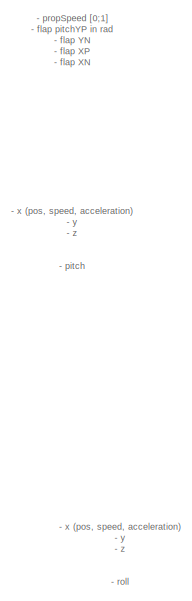
[diagram: root canvas - part 1/2, right side, full height]
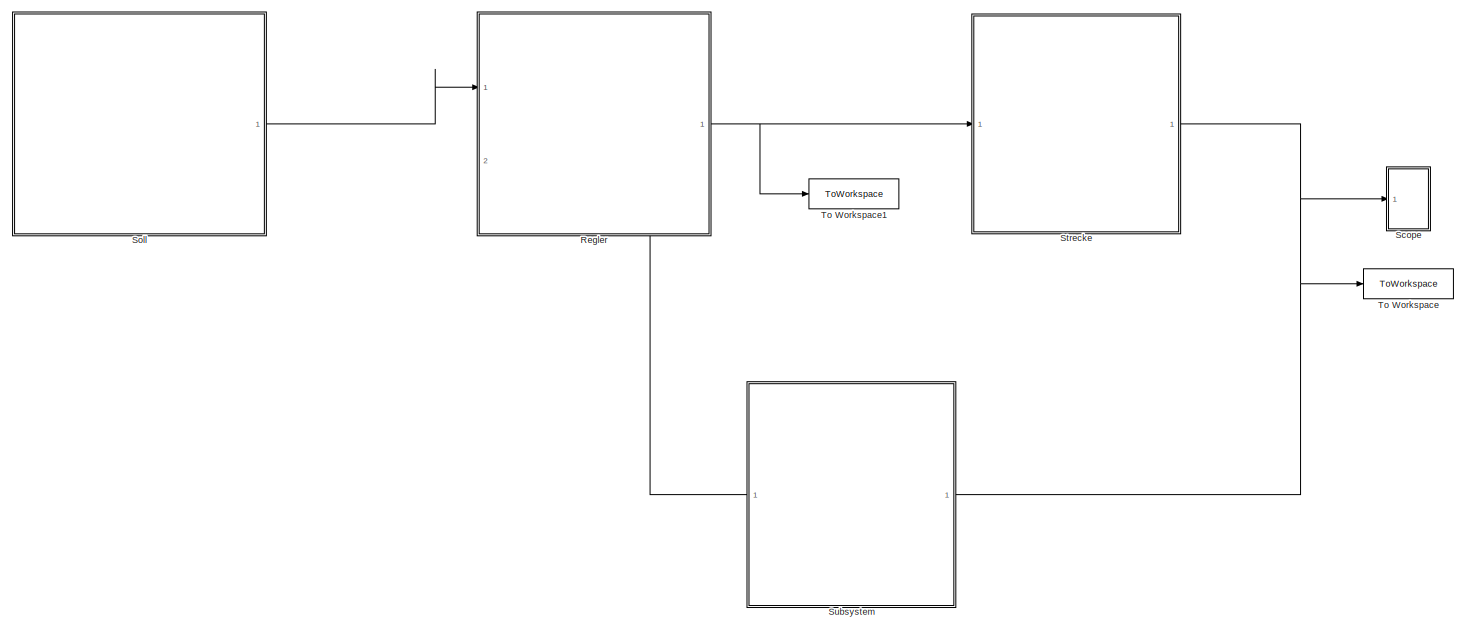
[diagram: root canvas - part 2/2, left side, full height]
MODEL slx_d0ba54fb018d
KIND model
CONFIG AbsTol = auto
CONFIG EnableMultiTasking = off
CONFIG FixedStep = auto
CONFIG MaxStep = 0.01
CONFIG MinStep = auto
CONFIG RelTol = 1e-3
CONFIG SampleTimeConstraint = Unconstrained
CONFIG SolverName = VariableStepAuto
CONFIG StartTime = 0.0
CONFIG StopTime = 50.2
BLOCK [SubSystem] Regler
  Ports = [2, 1]
  ReferencedSubsystem = Regler
  RequestExecContextInheritance = off
  VariantControl = Choice
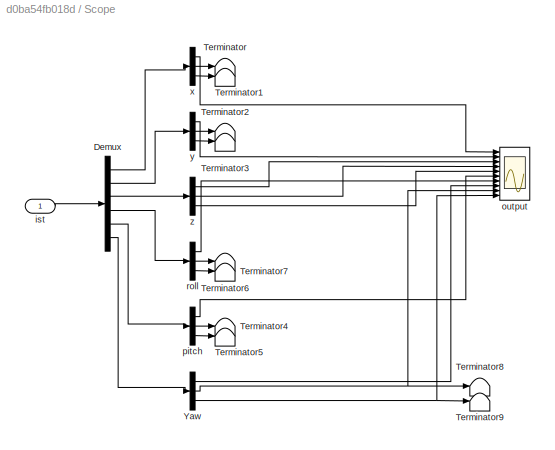
BLOCK [SubSystem] Scope
  Ports = [1]
  RequestExecContextInheritance = off
BLOCK [Demux] Scope/Demux
  Outputs = [3 3 3 3 3 3]
  Ports = [1, 6]
BLOCK [Terminator] Scope/Terminator
BLOCK [Terminator] Scope/Terminator1
BLOCK [Terminator] Scope/Terminator2
BLOCK [Terminator] Scope/Terminator3
BLOCK [Terminator] Scope/Terminator4
BLOCK [Terminator] Scope/Terminator5
BLOCK [Terminator] Scope/Terminator6
BLOCK [Terminator] Scope/Terminator7
BLOCK [Terminator] Scope/Terminator8
BLOCK [Terminator] Scope/Terminator9
BLOCK [Demux] Scope/Yaw
  NameLocation = top
  Outputs = 3
  Ports = [1, 3]
BLOCK [Inport] Scope/ist
BLOCK [Scope] Scope/output
  Floating = off
  NumInputPorts = 10
  Ports = [10]
  ScopeSpecificationString = Simulink.scopes.TimeScopeBlockCfg('CurrentConfiguration', extmgr.ConfigurationSet(extmgr.Configuration('Core','General UI',true),extmgr.Configuration('Core','Source UI',true),extmgr.Configuration('Sources','WiredSimulink',true),extmgr.Configuration('Visuals','Time Domain',true,'SerializedDisplays',{struct('MinYLimReal','-0.30613','MaxYLimReal','1.39127','YLabelReal','','MinYLimMag','0.00000','MaxY...<+1650ch>
BLOCK [Demux] Scope/pitch
  NameLocation = top
  Outputs = 3
  Ports = [1, 3]
BLOCK [Demux] Scope/roll
  NameLocation = top
  Outputs = 3
  Ports = [1, 3]
BLOCK [Demux] Scope/x
  NameLocation = top
  Outputs = 3
  Ports = [1, 3]
BLOCK [Demux] Scope/y
  NameLocation = top
  Outputs = 3
  Ports = [1, 3]
BLOCK [Demux] Scope/z
  NameLocation = top
  Outputs = 3
  Ports = [1, 3]
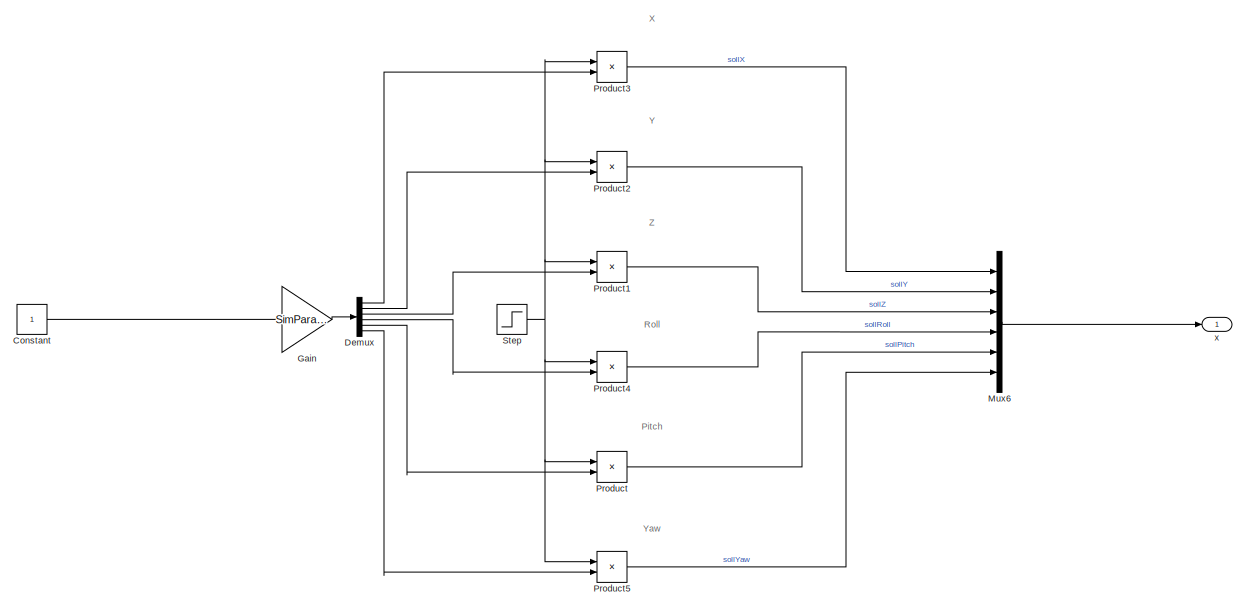
[diagram: Soll - part 1/2, left side, full height]
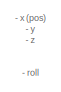
[diagram: Soll - part 2/2, middle right region]
BLOCK [SubSystem] Soll
  Ports = [0, 1]
  RequestExecContextInheritance = off
BLOCK [Constant] Soll/Constant
BLOCK [Demux] Soll/Demux
  Outputs = 6
  Ports = [1, 6]
BLOCK [Gain] Soll/Gain
  Gain = SimParam.Step{1,:}
BLOCK [Mux] Soll/Mux6
  DisplayOption = bar
  Inputs = 6
  Ports = [6, 1]
BLOCK [Product] Soll/Product
  Ports = [2, 1]
BLOCK [Product] Soll/Product1
  Ports = [2, 1]
BLOCK [Product] Soll/Product2
  Ports = [2, 1]
BLOCK [Product] Soll/Product3
  Ports = [2, 1]
BLOCK [Product] Soll/Product4
  Ports = [2, 1]
BLOCK [Product] Soll/Product5
  Ports = [2, 1]
BLOCK [Step] Soll/Step
  SampleTime = 0
BLOCK [Outport] Soll/x
BLOCK [SubSystem] Strecke
  Ports = [1, 1]
  ReferencedSubsystem = Strecke
  RequestExecContextInheritance = off
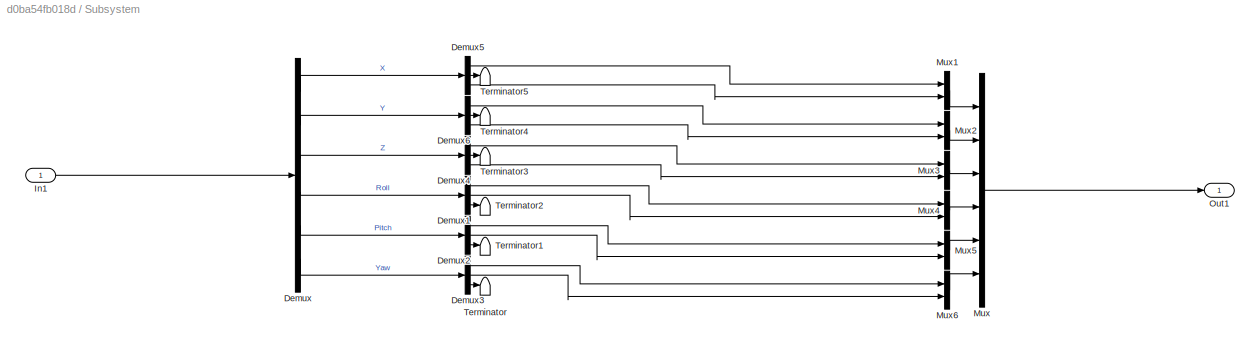
BLOCK [SubSystem] Subsystem
  PortSchema = {"entries":[{"content":{"sides":[{"content":{"connectorIds":["Out1"]},"type":"ConnectorPlacement.EquallySpacedRectSide","uuid":"0b6b1713-0599-4a2b-a6b8-17ca65ceb7bc"},{"content":{"connectorIds":["In1"],"side":"RIGHT"},"type":"ConnectorPlacement.EquallySpacedRectSide","uuid":"89969f44-fab1-4e90-b2ff-0e3a2cc6e655"},{"content":{"connectorIds":[],"side":"TOP"},"type":"ConnectorPlacement.EquallySpacedR...<+240ch>
  Ports = [1, 1]
  RequestExecContextInheritance = off
BLOCK [Demux] Subsystem/Demux
  Outputs = 6
  Ports = [1, 6]
BLOCK [Demux] Subsystem/Demux1
  Outputs = 3
  Ports = [1, 3]
BLOCK [Demux] Subsystem/Demux2
  Outputs = 3
  Ports = [1, 3]
BLOCK [Demux] Subsystem/Demux3
  Outputs = 3
  Ports = [1, 3]
BLOCK [Demux] Subsystem/Demux4
  Outputs = 3
  Ports = [1, 3]
BLOCK [Demux] Subsystem/Demux5
  Outputs = 3
  Ports = [1, 3]
BLOCK [Demux] Subsystem/Demux6
  Outputs = 3
  Ports = [1, 3]
BLOCK [Inport] Subsystem/In1
BLOCK [Mux] Subsystem/Mux
  DisplayOption = bar
  Inputs = 6
  Ports = [6, 1]
BLOCK [Mux] Subsystem/Mux1
  DisplayOption = bar
  Inputs = 2
  Ports = [2, 1]
BLOCK [Mux] Subsystem/Mux2
  DisplayOption = bar
  Inputs = 2
  Ports = [2, 1]
BLOCK [Mux] Subsystem/Mux3
  DisplayOption = bar
  Inputs = 2
  Ports = [2, 1]
BLOCK [Mux] Subsystem/Mux4
  DisplayOption = bar
  Inputs = 2
  Ports = [2, 1]
BLOCK [Mux] Subsystem/Mux5
  DisplayOption = bar
  Inputs = 2
  Ports = [2, 1]
BLOCK [Mux] Subsystem/Mux6
  DisplayOption = bar
  Inputs = 2
  Ports = [2, 1]
BLOCK [Outport] Subsystem/Out1
BLOCK [Terminator] Subsystem/Terminator
BLOCK [Terminator] Subsystem/Terminator1
BLOCK [Terminator] Subsystem/Terminator2
BLOCK [Terminator] Subsystem/Terminator3
BLOCK [Terminator] Subsystem/Terminator4
BLOCK [Terminator] Subsystem/Terminator5
BLOCK [ToWorkspace] To Workspace
  FixptAsFi = on
  MaxDataPoints = inf
  Ports = [1]
  SampleTime = -1
  SaveFormat = Timeseries
  VariableName = RM_State
BLOCK [ToWorkspace] To Workspace1
  FixptAsFi = on
  MaxDataPoints = inf
  Ports = [1]
  SampleTime = -1
  SaveFormat = Timeseries
  VariableName = stellgroessen
ANNOTATION (root): - propSpeed [0;1] - flap pitchYP in rad - flap YN - flap XP - flap XN
ANNOTATION (root): - x (pos, speed, acceleration) - y - z - pitch - roll - yaw
ANNOTATION (root): - x (pos, speed, acceleration) - y - z - roll - pitch - yaw
ANNOTATION Soll: - x (pos) - y - z - roll - pitch - yaw
ANNOTATION Soll: Pitch
ANNOTATION Soll: Roll
ANNOTATION Soll: X
ANNOTATION Soll: Y
ANNOTATION Soll: Yaw
ANNOTATION Soll: Z
NET Regler:1 -> Strecke:1, To Workspace1:1
LINE Scope/Demux:1 -> Scope/x:1
LINE Scope/Demux:2 -> Scope/y:1
LINE Scope/Demux:3 -> Scope/z:1
LINE Scope/Demux:4 -> Scope/roll:1
LINE Scope/Demux:5 -> Scope/pitch:1
LINE Scope/Demux:6 -> Scope/Yaw:1
LINE Scope/Yaw:1 -> Scope/output:8
NET Scope/Yaw:2 -> Scope/Terminator8:1, Scope/output:9
NET Scope/Yaw:3 -> Scope/Terminator9:1, Scope/output:10
LINE Scope/ist:1 -> Scope/Demux:1
LINE Scope/pitch:1 -> Scope/output:6
LINE Scope/pitch:2 -> Scope/Terminator4:1
LINE Scope/pitch:3 -> Scope/Terminator5:1
LINE Scope/roll:1 -> Scope/output:7
LINE Scope/roll:2 -> Scope/Terminator6:1
LINE Scope/roll:3 -> Scope/Terminator7:1
LINE Scope/x:1 -> Scope/output:1
LINE Scope/x:2 -> Scope/Terminator:1
LINE Scope/x:3 -> Scope/Terminator1:1
LINE Scope/y:1 -> Scope/output:2
LINE Scope/y:2 -> Scope/Terminator2:1
LINE Scope/y:3 -> Scope/Terminator3:1
LINE Scope/z:1 -> Scope/output:3
LINE Scope/z:2 -> Scope/output:4
LINE Scope/z:3 -> Scope/output:5
LINE Soll/Constant:1 -> Soll/Gain:1
LINE Soll/Demux:1 -> Soll/Product3:2
LINE Soll/Demux:2 -> Soll/Product2:2
LINE Soll/Demux:3 -> Soll/Product1:2
LINE Soll/Demux:4 -> Soll/Product4:2
LINE Soll/Demux:5 -> Soll/Product:2
LINE Soll/Demux:6 -> Soll/Product5:2
LINE Soll/Gain:1 -> Soll/Demux:1
LINE Soll/Mux6:1 -> Soll/x:1
LINE Soll/Product1:1 -> Soll/Mux6:3
LINE Soll/Product2:1 -> Soll/Mux6:2
LINE Soll/Product3:1 -> Soll/Mux6:1
LINE Soll/Product4:1 -> Soll/Mux6:4
LINE Soll/Product5:1 -> Soll/Mux6:6
LINE Soll/Product:1 -> Soll/Mux6:5
NET Soll/Step:1 -> Soll/Product1:1, Soll/Product2:1, Soll/Product3:1, Soll/Product4:1, Soll/Product5:1, Soll/Product:1
LINE Soll:1 -> Regler:1
NET Strecke:1 -> Scope:1, Subsystem:1, To Workspace:1
LINE Subsystem/Demux1:1 -> Subsystem/Mux4:1
LINE Subsystem/Demux1:2 -> Subsystem/Mux4:2
LINE Subsystem/Demux1:3 -> Subsystem/Terminator2:1
LINE Subsystem/Demux2:1 -> Subsystem/Mux5:1
LINE Subsystem/Demux2:2 -> Subsystem/Mux5:2
LINE Subsystem/Demux2:3 -> Subsystem/Terminator1:1
LINE Subsystem/Demux3:1 -> Subsystem/Mux6:1
LINE Subsystem/Demux3:2 -> Subsystem/Mux6:2
LINE Subsystem/Demux3:3 -> Subsystem/Terminator:1
LINE Subsystem/Demux4:1 -> Subsystem/Mux3:1
LINE Subsystem/Demux4:2 -> Subsystem/Terminator3:1
LINE Subsystem/Demux4:3 -> Subsystem/Mux3:2
LINE Subsystem/Demux5:1 -> Subsystem/Mux1:1
LINE Subsystem/Demux5:2 -> Subsystem/Terminator5:1
LINE Subsystem/Demux5:3 -> Subsystem/Mux1:2
LINE Subsystem/Demux6:1 -> Subsystem/Mux2:1
LINE Subsystem/Demux6:2 -> Subsystem/Terminator4:1
LINE Subsystem/Demux6:3 -> Subsystem/Mux2:2
LINE Subsystem/Demux:1 -> Subsystem/Demux5:1
LINE Subsystem/Demux:2 -> Subsystem/Demux6:1
LINE Subsystem/Demux:3 -> Subsystem/Demux4:1
LINE Subsystem/Demux:4 -> Subsystem/Demux1:1
LINE Subsystem/Demux:5 -> Subsystem/Demux2:1
LINE Subsystem/Demux:6 -> Subsystem/Demux3:1
LINE Subsystem/In1:1 -> Subsystem/Demux:1
LINE Subsystem/Mux1:1 -> Subsystem/Mux:1
LINE Subsystem/Mux2:1 -> Subsystem/Mux:2
LINE Subsystem/Mux3:1 -> Subsystem/Mux:3
LINE Subsystem/Mux4:1 -> Subsystem/Mux:4
LINE Subsystem/Mux5:1 -> Subsystem/Mux:5
LINE Subsystem/Mux6:1 -> Subsystem/Mux:6
LINE Subsystem/Mux:1 -> Subsystem/Out1:1
LINE Subsystem:1 -> Regler:2
note: NET lines group one-source signal fan-out (src -> all destinations, sorted); 1:1 wires keep LINE
